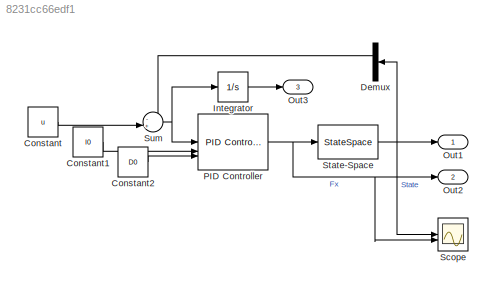
MODEL slx_8231cc66edf1
KIND model
CONFIG AbsTol = auto
CONFIG EnableMultiTasking = off
CONFIG FixedStep = 0.01
CONFIG MaxStep = auto
CONFIG MinStep = auto
CONFIG RelTol = 1e-3
CONFIG SampleTimeConstraint = Unconstrained
CONFIG SolverName = FixedStepAuto
CONFIG StartTime = 0.0
CONFIG StopTime = run_time
WORKSPACE source: mxarray member
WORKSPACE m: Simulink.Parameter (value not decoded)
BLOCK [Constant] Constant
  Value = u
BLOCK [Constant] Constant1
  Value = I0
BLOCK [Constant] Constant2
  Value = D0
BLOCK [Demux] Demux
  Outputs = 2
BLOCK [Integrator] Integrator
BLOCK [Outport] Out1
  SignalName = State
BLOCK [Outport] Out2
  Port = 2
  SignalName = Force
BLOCK [Outport] Out3
  Port = 3
  SignalName = Integral
BLOCK [Reference] PID Controller  REF=slpidlib/PID Controller
  SourceBlock = slpidlib/PID Controller
  SourceType = PID 1dof
BLOCK [Scope] Scope
  Floating = off
  NumInputPorts = 2
  ScopeSpecificationString = Simulink.scopes.TimeScopeBlockCfg('CurrentConfiguration', extmgr.ConfigurationSet(extmgr.Configuration('Core','General UI',true),extmgr.Configuration('Core','Source UI',true),extmgr.Configuration('Sources','WiredSimulink',true),extmgr.Configuration('Visuals','Time Domain',true,'SerializedDisplays',{struct('MinYLimReal','-10.09324','MaxYLimReal','30.70442','YLabelReal','','MinYLimMag','0.00000','Ma...<+1375ch>
BLOCK [StateSpace] State-Space
  A = [0 1; 0 0]
  B = [0; 1]
  C = [1 0; 0 1]
  D = [0;0]
  InitialCondition = x
BLOCK [Sum] Sum
  Inputs = -+|
LINE Constant1:1 -> PID Controller:2
LINE Constant2:1 -> PID Controller:3
LINE Constant:1 -> Sum:2
LINE Demux:1 -> Sum:1
LINE Integrator:1 -> Out3:1
NET PID Controller:1 -> Out2:1, Scope:2, State-Space:1
NET State-Space:1 -> Demux:1, Out1:1, Scope:1
NET Sum:1 -> Integrator:1, PID Controller:1
note: NET lines group one-source signal fan-out (src -> all destinations, sorted); 1:1 wires keep LINE
